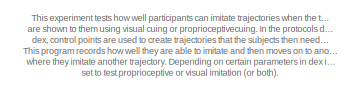
[diagram: root canvas - part 1/3, top left region]
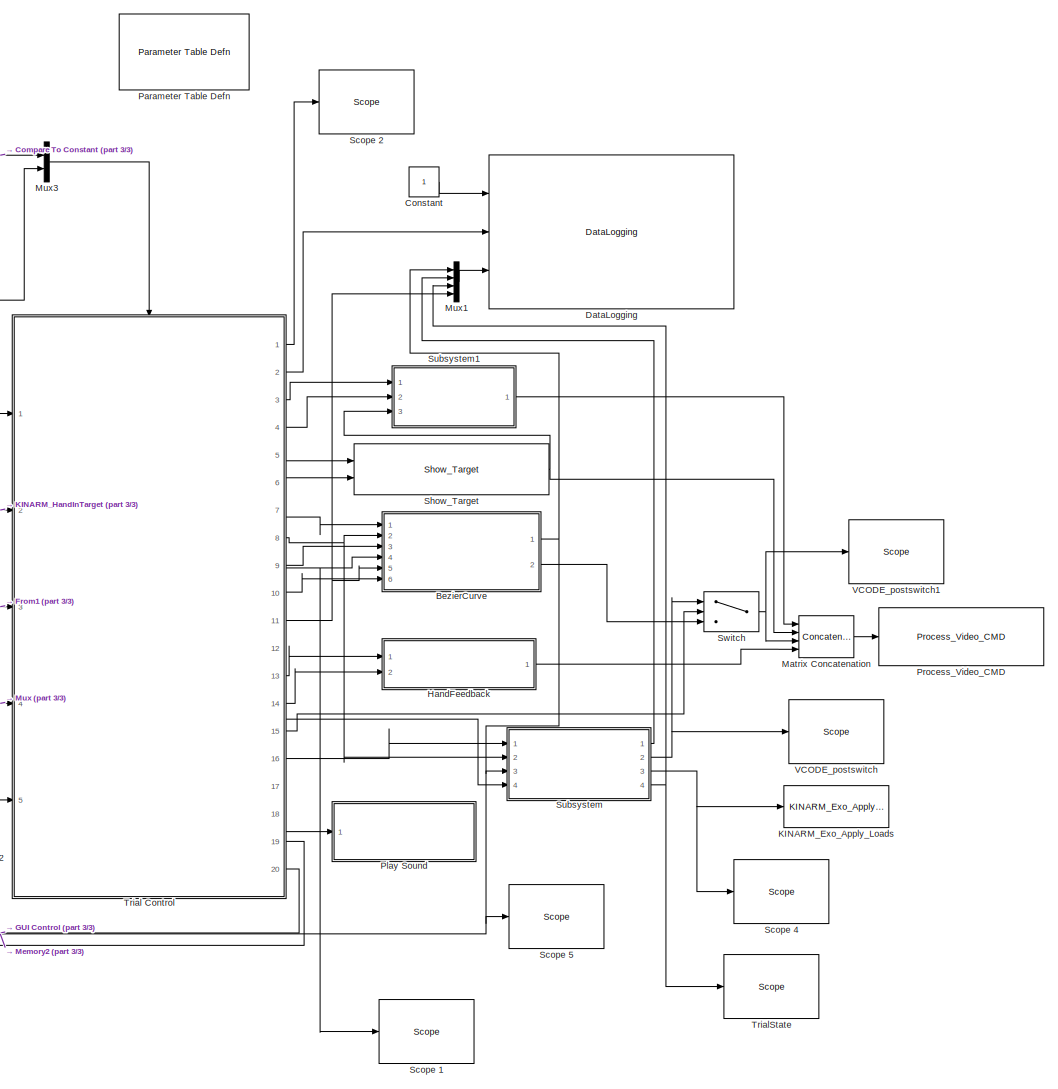
[diagram: root canvas - part 2/3, center side, full height]
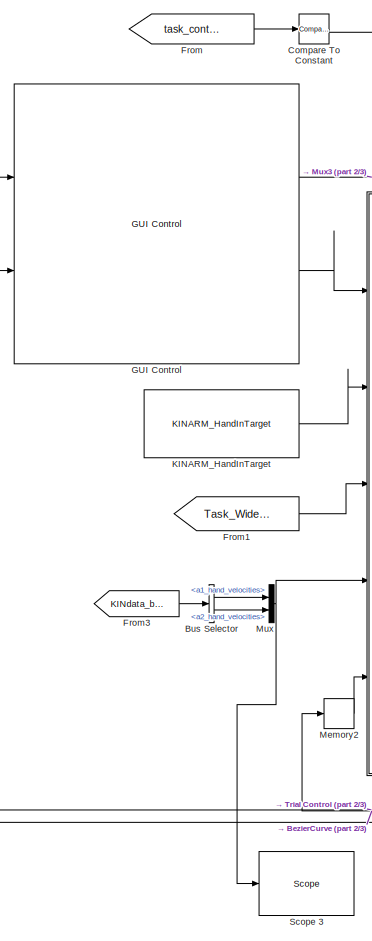
[diagram: root canvas - part 3/3, middle left region]
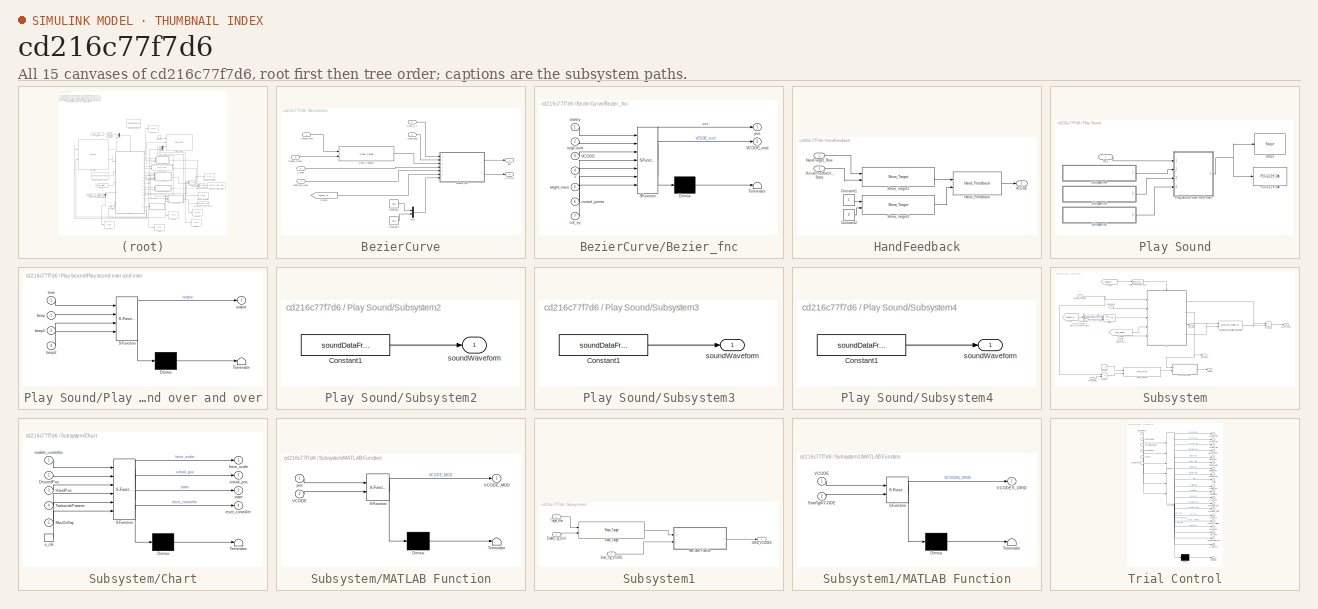
[diagram: thumbnail index - all 15 canvases of the model, root first then tree order]
MODEL slx_cd216c77f7d6
KIND model
CONFIG AbsTol = auto
CONFIG FixedStep = BKIN_STEP_TIME
CONFIG MaxStep = auto
CONFIG MinStep = auto
CONFIG RelTol = 1e-3
CONFIG SampleTimeConstraint = Unconstrained
CONFIG Solver = ode4
CONFIG SolverMode = MultiTasking
CONFIG SolverName = ode4
CONFIG StartFcn =  warndlg('Dexterit-E models cannot run under simulation. Please compile your model and run it from within Dexterit-E.');set_param(bdroot,'SimulationCommand','stop')
CONFIG StartTime = 0.0
CONFIG StopTime = inf
WORKSPACE source: MAT-file member
WORKSPACE col_x = 1
BLOCK [SubSystem] BezierCurve
  Ports = [6, 2]
  RequestExecContextInheritance = off
BLOCK [SubSystem] BezierCurve/Bezier_fnc
  ErrorFcn = Stateflow.Translate.translate
  PermitHierarchicalResolution = ExplicitOnly
  Ports = [7, 2]
  RequestExecContextInheritance = off
  SFBlockType = MATLAB Function
  TreatAsAtomicUnit = on
BLOCK [Demux] BezierCurve/Bezier_fnc/ Demux 
  Outputs = 1
  Ports = [1, 1]
BLOCK [S-Function] BezierCurve/Bezier_fnc/ SFunction 
  EnableBusSupport = on
  FunctionName = sf_sfun
  PortCounts = [7 3]
  Ports = [7, 3]
  Tag = Stateflow S-Function Imitation_Task_Multi_withSound_withGrid 3
BLOCK [Terminator] BezierCurve/Bezier_fnc/ Terminator 
BLOCK [Inport] BezierCurve/Bezier_fnc/VCODE
  IconDisplay = Port number
  Port = 3
BLOCK [Outport] BezierCurve/Bezier_fnc/VCODE_mod
  IconDisplay = Port number
  Port = 2
BLOCK [Inport] BezierCurve/Bezier_fnc/col_xy
  IconDisplay = Port number
  Port = 7
BLOCK [Inport] BezierCurve/Bezier_fnc/control_points
  IconDisplay = Port number
  Port = 6
BLOCK [Outport] BezierCurve/Bezier_fnc/pos
  IconDisplay = Port number
BLOCK [Inport] BezierCurve/Bezier_fnc/segCount
  IconDisplay = Port number
  Port = 2
BLOCK [Inport] BezierCurve/Bezier_fnc/startxy
  IconDisplay = Port number
BLOCK [Inport] BezierCurve/Bezier_fnc/t
  IconDisplay = Port number
  Port = 4
BLOCK [Inport] BezierCurve/Bezier_fnc/target_rows
  IconDisplay = Port number
  Port = 5
BLOCK [Constant] BezierCurve/Constant1
  Value = col_x
BLOCK [Constant] BezierCurve/Constant2
  Value = col_y
BLOCK [From] BezierCurve/From2
  GotoTag = Target_Table
  TagVisibility = global
BLOCK [Mux] BezierCurve/Mux
  DisplayOption = bar
  Inputs = 2
  Ports = [2, 1]
BLOCK [Inport] BezierCurve/SegCount
  IconDisplay = Port number
  Port = 6
BLOCK [Reference] BezierCurve/Show_Target3  REF=Video/Show_Target
  Ports = [2, 1]
  SourceBlock = Video/Show_Target
  SourceType = Show_Target
  attribcol1 = [COLOR_INIT 0 0 RADIUS_VIS]
  attribcol2 = [6 6 0 3]
  attribcol3 = [0 0 0 0]
  attribcol4 = [0 0 0 0]
  attribcol5 = [0 0 24 0]
  num_col = 4
  num_states = 1
  opacity = 100
  source = dialog
  stateindices_padding = [0 0 0 0 0 0 0;0 0 0 0 0 0 0;0 0 0 0 0 0 0;0 0 0 0 0 0 0;0 0 0 0 0 0 0]
  target_display = Both subject and operator displays
  target_type = Circle
BLOCK [Inport] BezierCurve/Start_XY
  IconDisplay = Port number
  Port = 5
BLOCK [Inport] BezierCurve/Target_Row
  IconDisplay = Port number
BLOCK [Inport] BezierCurve/Target_State
  IconDisplay = Port number
  Port = 2
BLOCK [Outport] BezierCurve/VCODE
  IconDisplay = Port number
  Port = 2
BLOCK [Inport] BezierCurve/controlpt_rows
  IconDisplay = Port number
  Port = 4
BLOCK [Outport] BezierCurve/pos
  IconDisplay = Port number
BLOCK [Inport] BezierCurve/t_step
  IconDisplay = Port number
  Port = 3
BLOCK [BusSelector] Bus Selector
  OutputSignals = Robot1.a1_hand_velocities,Robot2.a2_hand_velocities
  Ports = [1, 2]
BLOCK [Reference] Compare To Constant  REF=simulink/Logic and Bit
Operations/Compare
To Constant
  OutDataTypeStr = boolean
  Ports = [1, 1]
  SourceBlock = simulink/Logic and Bit\nOperations/Compare\nTo Constant
  SourceType = Compare To Constant
  ZeroCross = on
  const = 1.0
  relop = >
BLOCK [Constant] Constant
BLOCK [Reference] DataLogging  REF=General/DataLogging
  Ports = [3]
  SourceBlock = General/DataLogging
  SourceType = DataLogging
  log_analog_inputs = on
  log_event_codes = on
  show_time_remaining = off
BLOCK [From] From
  GotoTag = task_control_button
  IconDisplay = Signal name
  TagVisibility = global
BLOCK [From] From1
  GotoTag = Task_Wide_Parameters
  TagVisibility = global
BLOCK [From] From3
  CloseFcn = tagdialog Close
  GotoTag = KINdata_bus
  TagVisibility = global
BLOCK [Reference] GUI Control  REF=General/GUI Control
  Lcols = 4
  Ports = [2, 2]
  SourceBlock = General/GUI Control
  SourceType = GUI Control
  Target_Type = 1
  Vcols = 3
  XYcols = [1 2]
  indices_padding = [0 0 0 0;0 0 0 0]
  load_table_rows = 20
  show_repeat_trial_flag = on
  target_table_rows = 64
  target_type_str = Circle
  task_version = 1.0
  tp_table_rows = 100
BLOCK [SubSystem] HandFeedback
  Ports = [2, 1]
  RequestExecContextInheritance = off
BLOCK [Constant] HandFeedback/Constant1
BLOCK [Constant] HandFeedback/Constant2
  Value = 0
BLOCK [Inport] HandFeedback/HandTarget_Row
  IconDisplay = Port number
BLOCK [Reference] HandFeedback/Hand_Feedback  REF=KINARM_general/Hand_Feedback
  Ports = [2, 1]
  SourceBlock = KINARM_general/Hand_Feedback
  SourceType = Hand Feedback
  feedback_cntl_src = style and status
BLOCK [Reference] HandFeedback/Show_Target1  REF=Video/Show_Target
  Ports = [2, 1]
  SourceBlock = Video/Show_Target
  SourceType = Show_Target
  attribcol1 = [COLOR_INIT 0 0 RADIUS_VIS]
  attribcol2 = [COLOR_MOVE 0 0 RADIUS_VIS]
  attribcol3 = [0 0 0 0]
  attribcol4 = [0 0 0 0]
  attribcol5 = [0 0 24 0]
  num_col = 4
  num_states = 2
  opacity = 100
  source = dialog
  stateindices_padding = [0 0 0 0 0 0 0;0 0 0 0 0 0 0;0 0 0 0 0 0 0;0 0 0 0 0 0 0;0 0 0 0 0 0 0]
  target_display = Both subject and operator displays
  target_type = Circle
BLOCK [Reference] HandFeedback/Show_Target2  REF=Video/Show_Target
  Ports = [2, 1]
  SourceBlock = Video/Show_Target
  SourceType = Show_Target
  attribcol1 = [COLOR_INIT 0 0 RADIUS_VIS]
  attribcol2 = [COLOR_MOVE 0 0 RADIUS_VIS]
  attribcol3 = [0 0 0 0]
  attribcol4 = [0 0 0 0]
  attribcol5 = [0 0 24 0]
  num_col = 4
  num_states = 2
  opacity = 100
  source = dialog
  stateindices_padding = [0 0 0 0 0 0 0;0 0 0 0 0 0 0;0 0 0 0 0 0 0;0 0 0 0 0 0 0;0 0 0 0 0 0 0]
  target_display = Both subject and operator displays
  target_type = Circle
BLOCK [Outport] HandFeedback/VCODE
  IconDisplay = Port number
BLOCK [Inport] HandFeedback/VisualFeedback_State
  IconDisplay = Port number
  Port = 2
BLOCK [Reference] KINARM_Exo_Apply_Loads  REF=KINARM_loads/KINARM_Exo_Apply_Loads
  Ports = [1]
  SourceBlock = KINARM_loads/KINARM_Exo_Apply_Loads
  SourceType = KINARM_Apply_Loads
  down_duration = 200
  limit_motors = off
  max_torque = 9
  up_duration = 200
BLOCK [Reference] KINARM_HandInTarget  REF=KINARM_general/KINARM_HandInTarget
  Ports = [0, 1]
  SourceBlock = KINARM_general/KINARM_HandInTarget
  SourceType = KINARM_HandInTarget
  attribcol1 = [RADIUS_VIS]
  attribcol2 = [4]
  attribcol3 = [5]
  attribcol4 = [6]
  attribcol5 = [0]
  num_states = 1
  target_type = Circle
  use_dominant_hand = on
BLOCK [Concatenate] Matrix Concatenation
  Mode = Multidimensional array
  NumInputs = 4
  Ports = [4, 1]
BLOCK [Memory] Memory2
  InheritSampleTime = on
BLOCK [Mux] Mux
  DisplayOption = bar
  Inputs = [2 2]
  Ports = [2, 1]
BLOCK [Mux] Mux1
  DisplayOption = bar
  Ports = [4, 1]
BLOCK [Mux] Mux3
  DisplayOption = bar
  Inputs = 2
  Ports = [2, 1]
BLOCK [Reference] Parameter Table Defn  REF=General/Parameter Table Defn
  Ports = []
  ShowInLibBrowser = 0
  SourceBlock = General/Parameter Table Defn
  UserDataPersistent = on
BLOCK [SubSystem] Play Sound
  Ports = [1]
  RequestExecContextInheritance = off
BLOCK [Inport] Play Sound/In1
  IconDisplay = Signal name
BLOCK [Reference] Play Sound/PCI-6229 DA  REF=xpcnilib/D//A/M Series/PCI-6229 DA
  Ports = [1]
  SourceBlock = xpcnilib/D//A/M Series/PCI-6229 DA
  SourceType = danipci6229
  channel = [1]
  initValue = [0]
  reset = [1]
  sampletime = -1
  slot = -1
BLOCK [SubSystem] Play Sound/Play sound over and over
  ErrorFcn = Stateflow.Translate.translate
  PermitHierarchicalResolution = ExplicitOnly
  Ports = [4, 1]
  RequestExecContextInheritance = off
  SFBlockType = MATLAB Function
  TreatAsAtomicUnit = on
BLOCK [Demux] Play Sound/Play sound over and over/ Demux 
  Outputs = 1
  Ports = [1, 1]
BLOCK [S-Function] Play Sound/Play sound over and over/ SFunction 
  EnableBusSupport = on
  FunctionName = sf_sfun
  PortCounts = [4 2]
  Ports = [4, 2]
  Tag = Stateflow S-Function Imitation_Task_Multi_withSound_withGrid 6
BLOCK [Terminator] Play Sound/Play sound over and over/ Terminator 
BLOCK [Inport] Play Sound/Play sound over and over/beep
  IconDisplay = Port number
  Port = 2
BLOCK [Inport] Play Sound/Play sound over and over/beep1
  IconDisplay = Port number
  Port = 3
BLOCK [Inport] Play Sound/Play sound over and over/beep2
  IconDisplay = Port number
  Port = 4
BLOCK [Outport] Play Sound/Play sound over and over/output
  IconDisplay = Port number
BLOCK [Inport] Play Sound/Play sound over and over/tone
  IconDisplay = Port number
BLOCK [Reference] Play Sound/Scope   REF=slrtlib/Displays and
Logging/Scope 
  Ports = [1]
  SourceBlock = slrtlib/Displays and\nLogging/Scope
  SourceType = xpcscopeblock
  autorestart = off
  autostart = on
  dynamicfilemode = off
  filename = data.dat
  formatstr = '%15.6f'
  grid = on
  interleave = 1
  maxwritefilesize = 512*1024^2
  mode = Lazy
  noprepostsamples = 0
  nosamples = 4000
  scopeno = 9
  scopetype = Target
  triggerlevel = 0.0
  triggermode = FreeRun
  triggersample = 0
  triggerscope = 1
  triggersignal = 1
  triggerslope = Either
  trigsignalfromport = off
  viewmode = Graphical redraw
  writesize = 512
  ylimits = [0,0]
BLOCK [SubSystem] Play Sound/Subsystem2
  Ports = [0, 1]
  RequestExecContextInheritance = off
BLOCK [Constant] Play Sound/Subsystem2/Constant1
  Value = soundDataFromFile
BLOCK [Outport] Play Sound/Subsystem2/soundWaveform
  IconDisplay = Port number
BLOCK [SubSystem] Play Sound/Subsystem3
  Ports = [0, 1]
  RequestExecContextInheritance = off
BLOCK [Constant] Play Sound/Subsystem3/Constant1
  Value = soundDataFromFile
BLOCK [Outport] Play Sound/Subsystem3/soundWaveform
  IconDisplay = Port number
BLOCK [SubSystem] Play Sound/Subsystem4
  Ports = [0, 1]
  RequestExecContextInheritance = off
BLOCK [Constant] Play Sound/Subsystem4/Constant1
  Value = soundDataFromFile
BLOCK [Outport] Play Sound/Subsystem4/soundWaveform
  IconDisplay = Port number
BLOCK [Reference] Process_Video_CMD  REF=Video/Process_Video_CMD
  Ports = [1]
  SourceBlock = Video/Process_Video_CMD
  SourceType = Process_Video_CMD
  video_delay = 50
BLOCK [Reference] Scope 1  REF=slrtlib/Displays and
Logging/Scope 
  Ports = [1]
  SourceBlock = slrtlib/Displays and\nLogging/Scope
  SourceType = xpcscopeblock
  autorestart = off
  autostart = on
  dynamicfilemode = off
  filename = data.dat
  formatstr = '%15.6f'
  grid = on
  interleave = 1
  maxwritefilesize = 512*1024^2
  mode = Lazy
  noprepostsamples = 0
  nosamples = 250
  scopeno = 2
  scopetype = Target
  triggerlevel = 0.0
  triggermode = FreeRun
  triggersample = 0
  triggerscope = 1
  triggersignal = 1
  triggerslope = Either
  trigsignalfromport = off
  viewmode = Numerical
  writesize = 512
  ylimits = [0,0]
BLOCK [Reference] Scope 2  REF=slrtlib/Displays and
Logging/Scope 
  Ports = [1]
  SourceBlock = slrtlib/Displays and\nLogging/Scope
  SourceType = xpcscopeblock
  autorestart = off
  autostart = on
  dynamicfilemode = off
  filename = data.dat
  formatstr = '%15.6f'
  grid = on
  interleave = 1
  maxwritefilesize = 512*1024^2
  mode = Lazy
  noprepostsamples = 0
  nosamples = 250
  scopeno = 3
  scopetype = Target
  triggerlevel = 0.0
  triggermode = FreeRun
  triggersample = 0
  triggerscope = 1
  triggersignal = 1
  triggerslope = Either
  trigsignalfromport = off
  viewmode = Numerical
  writesize = 512
  ylimits = [0,0]
BLOCK [Reference] Scope 3  REF=slrtlib/Displays and
Logging/Scope 
  Ports = [1]
  SourceBlock = slrtlib/Displays and\nLogging/Scope
  SourceType = xpcscopeblock
  autorestart = off
  autostart = on
  dynamicfilemode = off
  filename = data.dat
  formatstr = '%15.6f'
  grid = on
  interleave = 1
  maxwritefilesize = 512*1024^2
  mode = Lazy
  noprepostsamples = 0
  nosamples = 250
  scopeno = 4
  scopetype = Target
  triggerlevel = 0.0
  triggermode = FreeRun
  triggersample = 0
  triggerscope = 1
  triggersignal = 1
  triggerslope = Either
  trigsignalfromport = off
  viewmode = Numerical
  writesize = 512
  ylimits = [0,0]
BLOCK [Reference] Scope 4  REF=slrtlib/Displays and
Logging/Scope 
  Ports = [1]
  SourceBlock = slrtlib/Displays and\nLogging/Scope
  SourceType = xpcscopeblock
  autorestart = off
  autostart = on
  dynamicfilemode = off
  filename = data.dat
  formatstr = '%15.6f'
  grid = on
  interleave = 1
  maxwritefilesize = 512*1024^2
  mode = Lazy
  noprepostsamples = 0
  nosamples = 250
  scopeno = 5
  scopetype = Target
  triggerlevel = 0.0
  triggermode = FreeRun
  triggersample = 0
  triggerscope = 1
  triggersignal = 1
  triggerslope = Either
  trigsignalfromport = off
  viewmode = Numerical
  writesize = 512
  ylimits = [0,0]
BLOCK [Reference] Scope 5  REF=slrtlib/Displays and
Logging/Scope 
  Ports = [1]
  SourceBlock = slrtlib/Displays and\nLogging/Scope
  SourceType = xpcscopeblock
  autorestart = off
  autostart = on
  dynamicfilemode = off
  filename = data.dat
  formatstr = '%15.6f'
  grid = on
  interleave = 1
  maxwritefilesize = 512*1024^2
  mode = Lazy
  noprepostsamples = 0
  nosamples = 250
  scopeno = 7
  scopetype = Target
  triggerlevel = 0.0
  triggermode = FreeRun
  triggersample = 0
  triggerscope = 1
  triggersignal = 1
  triggerslope = Either
  trigsignalfromport = off
  viewmode = Numerical
  writesize = 512
  ylimits = [0,0]
BLOCK [Reference] Show_Target  REF=Video/Show_Target
  Ports = [2, 1]
  SourceBlock = Video/Show_Target
  SourceType = Show_Target
  attribcol1 = [0 COLOR_INIT STROKE_WIDTH RADIUS_VIS RADIUS_VIS 0]
  attribcol2 = [6 6 0 3 0 0]
  attribcol3 = [0 0 0 0 0 0]
  attribcol4 = [0 0 0 0 0 0]
  attribcol5 = [0 0 24 0 0 0]
  num_col = 6
  num_states = 1
  opacity = 100
  source = dialog
  stateindices_padding = [0 0 0 0 0;0 0 0 0 0;0 0 0 0 0;0 0 0 0 0;0 0 0 0 0]
  target_display = Both subject and operator displays
  target_type = Rectangle
BLOCK [SubSystem] Subsystem
  Ports = [4, 4]
  RequestExecContextInheritance = off
BLOCK [BusSelector] Subsystem/Bus Selector
  OutputSignals = Robot2.a2_hand_position,KINDataGeneral.active_arm,Robot1.a1_hand_position
  Ports = [1, 3]
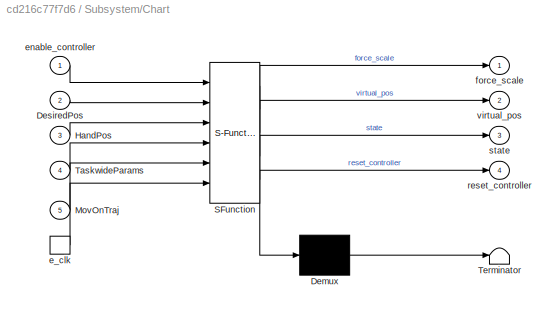
BLOCK [SubSystem] Subsystem/Chart
  ErrorFcn = Stateflow.Translate.translate
  PermitHierarchicalResolution = ExplicitOnly
  Ports = [5, 4, 0, 1]
  RequestExecContextInheritance = off
  SFBlockType = Chart
  TreatAsAtomicUnit = on
BLOCK [Demux] Subsystem/Chart/ Demux 
  Outputs = 1
  Ports = [1, 1]
BLOCK [S-Function] Subsystem/Chart/ SFunction 
  EnableBusSupport = on
  FunctionName = sf_sfun
  PortCounts = [6 5]
  Ports = [6, 5]
  Tag = Stateflow S-Function Imitation_Task_Multi_withSound_withGrid 1
BLOCK [Terminator] Subsystem/Chart/ Terminator 
BLOCK [Inport] Subsystem/Chart/DesiredPos
  IconDisplay = Port number
  Port = 2
BLOCK [Inport] Subsystem/Chart/HandPos
  IconDisplay = Port number
  Port = 3
BLOCK [Inport] Subsystem/Chart/MovOnTraj
  IconDisplay = Port number
  Port = 5
BLOCK [Inport] Subsystem/Chart/TaskwideParams
  IconDisplay = Port number
  Port = 4
BLOCK [TriggerPort] Subsystem/Chart/e_clk
  Ports = [0, 1]
  ShowOutputPort = on
  StatesWhenEnabling = held
  TriggerType = either
BLOCK [Inport] Subsystem/Chart/enable_controller
  IconDisplay = Port number
BLOCK [Outport] Subsystem/Chart/force_scale
  IconDisplay = Port number
BLOCK [Outport] Subsystem/Chart/reset_controller
  IconDisplay = Port number
  Port = 4
BLOCK [Outport] Subsystem/Chart/state
  IconDisplay = Port number
  Port = 3
BLOCK [Outport] Subsystem/Chart/virtual_pos
  IconDisplay = Port number
  Port = 2
BLOCK [Constant] Subsystem/Constant
  Value = 2
BLOCK [DataTypeConversion] Subsystem/Data Type Conversion2
  RndMeth = Floor
  SaturateOnIntegerOverflow = off
BLOCK [Outport] Subsystem/EXO Torques
  IconDisplay = Port number
  Port = 3
BLOCK [From] Subsystem/From
  GotoTag = KINdata_bus
  TagVisibility = global
BLOCK [From] Subsystem/From1
  GotoTag = Task_Wide_Parameters
  TagVisibility = global
BLOCK [From] Subsystem/From4
  CloseFcn = tagdialog Close
  GotoTag = global_clock
  TagVisibility = global
BLOCK [Reference] Subsystem/KINARM_Exo_Position_Controller  REF=KINARM_loads/KINARM_Exo_Position_Controller
  KINARM_Type = Human
  Ports = [2, 1]
  SourceBlock = KINARM_loads/KINARM_Exo_Position_Controller
  angles_or_XY = End-point (global x/y)
  inertias_for_FF = KINARM robot & arm troughs & subject
  sample_time = 0.001
  use_dom_hand = on
BLOCK [SubSystem] Subsystem/MATLAB Function
  ErrorFcn = Stateflow.Translate.translate
  PermitHierarchicalResolution = ExplicitOnly
  Ports = [2, 1]
  RequestExecContextInheritance = off
  SFBlockType = MATLAB Function
  TreatAsAtomicUnit = on
BLOCK [Demux] Subsystem/MATLAB Function/ Demux 
  Outputs = 1
  Ports = [1, 1]
BLOCK [S-Function] Subsystem/MATLAB Function/ SFunction 
  EnableBusSupport = on
  FunctionName = sf_sfun
  PortCounts = [2 2]
  Ports = [2, 2]
  Tag = Stateflow S-Function Imitation_Task_Multi_withSound_withGrid 4
BLOCK [Terminator] Subsystem/MATLAB Function/ Terminator 
BLOCK [Inport] Subsystem/MATLAB Function/VCODE
  IconDisplay = Port number
  Port = 2
BLOCK [Outport] Subsystem/MATLAB Function/VCODE_MOD
  IconDisplay = Port number
BLOCK [Inport] Subsystem/MATLAB Function/pos
  IconDisplay = Port number
BLOCK [Inport] Subsystem/MovOnTraj
  IconDisplay = Port number
  Port = 4
BLOCK [Product] Subsystem/Product
  InputSameDT = off
  OutDataTypeStr = Inherit: Inherit via internal rule
  Ports = [2, 1]
  RndMeth = Floor
  SaturateOnIntegerOverflow = off
BLOCK [Product] Subsystem/Product2
  InputSameDT = off
  OutDataTypeStr = Inherit: Inherit via internal rule
  Ports = [2, 1]
  RndMeth = Floor
  SaturateOnIntegerOverflow = off
BLOCK [Reference] Subsystem/Show_Target  REF=Video/Show_Target
  Ports = [2, 1]
  SourceBlock = Video/Show_Target
  SourceType = Show_Target
  attribcol1 = [COLOR_INIT 0 0 RADIUS_VIS]
  attribcol2 = [6 6 0 3]
  attribcol3 = [0 0 0 0]
  attribcol4 = [0 0 0 0]
  attribcol5 = [0 0 24 0]
  num_col = 4
  num_states = 1
  opacity = 100
  source = dialog
  stateindices_padding = [0 0 0 0 0 0 0;0 0 0 0 0 0 0;0 0 0 0 0 0 0;0 0 0 0 0 0 0;0 0 0 0 0 0 0]
  target_display = Both subject and operator displays
  target_type = Circle
BLOCK [Switch] Subsystem/Switch
  Criteria = u2 > Threshold
  InputSameDT = off
  SaturateOnIntegerOverflow = off
  Threshold = 1.5
BLOCK [Outport] Subsystem/VCODE
  IconDisplay = Port number
  Port = 2
BLOCK [Inport] Subsystem/desiredpos
  IconDisplay = Port number
  Port = 3
BLOCK [Inport] Subsystem/enable_controller
  IconDisplay = Port number
BLOCK [Inport] Subsystem/target_state
  IconDisplay = Port number
  Port = 2
BLOCK [Outport] Subsystem/trial_state
  IconDisplay = Port number
  Port = 4
BLOCK [Outport] Subsystem/virtual_pos
  IconDisplay = Port number
BLOCK [SubSystem] Subsystem1
  Ports = [3, 1]
  RequestExecContextInheritance = off
BLOCK [Inport] Subsystem1/Enable_Tgt_Grid
  IconDisplay = Port number
BLOCK [Outport] Subsystem1/GRID_VCODES
  IconDisplay = Port number
BLOCK [SubSystem] Subsystem1/MATLAB Function
  ErrorFcn = Stateflow.Translate.translate
  PermitHierarchicalResolution = ExplicitOnly
  Ports = [2, 1]
  RequestExecContextInheritance = off
  SFBlockType = MATLAB Function
  TreatAsAtomicUnit = on
BLOCK [Demux] Subsystem1/MATLAB Function/ Demux 
  Outputs = 1
  Ports = [1, 1]
BLOCK [S-Function] Subsystem1/MATLAB Function/ SFunction 
  EnableBusSupport = on
  FunctionName = sf_sfun
  PortCounts = [2 2]
  Ports = [2, 2]
  Tag = Stateflow S-Function Imitation_Task_Multi_withSound_withGrid 5
BLOCK [Terminator] Subsystem1/MATLAB Function/ Terminator 
BLOCK [Inport] Subsystem1/MATLAB Function/StartTgtVCODE
  IconDisplay = Port number
  Port = 2
BLOCK [Inport] Subsystem1/MATLAB Function/VCODE
  IconDisplay = Port number
BLOCK [Outport] Subsystem1/MATLAB Function/VCODES_GRID
  IconDisplay = Port number
BLOCK [Reference] Subsystem1/Show_Target  REF=Video/Show_Target
  Ports = [2, 1]
  SourceBlock = Video/Show_Target
  SourceType = Show_Target
  attribcol1 = [COLOR_INIT 0 0 RADIUS_VIS]
  attribcol2 = [6 6 0 3]
  attribcol3 = [0 0 0 0]
  attribcol4 = [0 0 0 0]
  attribcol5 = [0 0 24 0]
  num_col = 4
  num_states = 1
  opacity = 100
  source = dialog
  stateindices_padding = [0 0 0 0 0 0 0;0 0 0 0 0 0 0;0 0 0 0 0 0 0;0 0 0 0 0 0 0;0 0 0 0 0 0 0]
  target_display = Both subject and operator displays
  target_type = Circle
BLOCK [Inport] Subsystem1/Start_Tgt_VCODE
  IconDisplay = Port number
  Port = 3
BLOCK [Inport] Subsystem1/Target_Row
  IconDisplay = Port number
  Port = 2
BLOCK [Switch] Switch
  Criteria = u2 > Threshold
  InputSameDT = off
  SaturateOnIntegerOverflow = off
  Threshold = 0.5
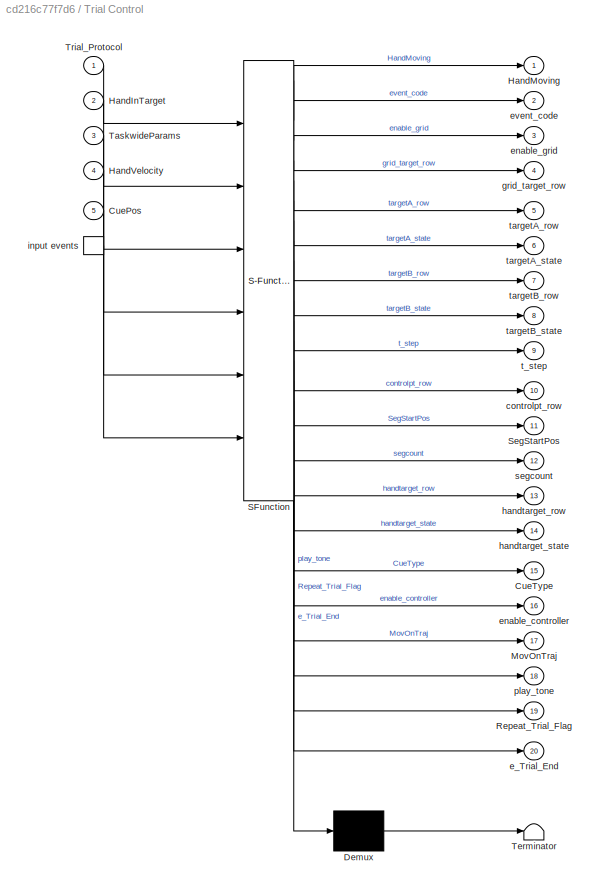
BLOCK [SubSystem] Trial Control
  ErrorFcn = Stateflow.Translate.translate
  PermitHierarchicalResolution = ExplicitOnly
  Ports = [5, 20, 0, 1]
  RequestExecContextInheritance = off
  SFBlockType = Chart
  TreatAsAtomicUnit = on
BLOCK [Demux] Trial Control/ Demux 
  Outputs = 1
  Ports = [1, 1]
BLOCK [S-Function] Trial Control/ SFunction 
  EnableBusSupport = on
  FunctionName = sf_sfun
  PortCounts = [6 21]
  Ports = [6, 21]
  Tag = Stateflow S-Function Imitation_Task_Multi_withSound_withGrid 2
BLOCK [Terminator] Trial Control/ Terminator 
BLOCK [TriggerPort] Trial Control/ input events 
  Ports = [0, 1]
  ShowOutputPort = on
  TriggerType = either
BLOCK [Inport] Trial Control/CuePos
  IconDisplay = Port number
  Port = 5
BLOCK [Outport] Trial Control/CueType
  IconDisplay = Port number
  Port = 15
BLOCK [Inport] Trial Control/HandInTarget
  IconDisplay = Port number
  Port = 2
BLOCK [Outport] Trial Control/HandMoving
  IconDisplay = Port number
BLOCK [Inport] Trial Control/HandVelocity
  IconDisplay = Port number
  Port = 4
BLOCK [Outport] Trial Control/MovOnTraj
  IconDisplay = Port number
  Port = 17
BLOCK [Outport] Trial Control/Repeat_Trial_Flag
  IconDisplay = Port number
  Port = 19
BLOCK [Outport] Trial Control/SegStartPos
  IconDisplay = Port number
  Port = 11
BLOCK [Inport] Trial Control/TaskwideParams
  IconDisplay = Port number
  Port = 3
BLOCK [Inport] Trial Control/Trial_Protocol
  IconDisplay = Port number
BLOCK [Outport] Trial Control/controlpt_row
  IconDisplay = Port number
  Port = 10
BLOCK [Outport] Trial Control/e_Trial_End
  IconDisplay = Port number
  Port = 20
BLOCK [Outport] Trial Control/enable_controller
  IconDisplay = Port number
  Port = 16
BLOCK [Outport] Trial Control/enable_grid
  IconDisplay = Port number
  Port = 3
BLOCK [Outport] Trial Control/event_code
  IconDisplay = Port number
  Port = 2
BLOCK [Outport] Trial Control/grid_target_row
  IconDisplay = Port number
  Port = 4
BLOCK [Outport] Trial Control/handtarget_row
  IconDisplay = Port number
  Port = 13
BLOCK [Outport] Trial Control/handtarget_state
  IconDisplay = Port number
  Port = 14
BLOCK [Outport] Trial Control/play_tone
  IconDisplay = Port number
  Port = 18
BLOCK [Outport] Trial Control/segcount
  IconDisplay = Port number
  Port = 12
BLOCK [Outport] Trial Control/t_step
  IconDisplay = Port number
  Port = 9
BLOCK [Outport] Trial Control/targetA_row
  IconDisplay = Port number
  Port = 5
BLOCK [Outport] Trial Control/targetA_state
  IconDisplay = Port number
  Port = 6
BLOCK [Outport] Trial Control/targetB_row
  IconDisplay = Port number
  Port = 7
BLOCK [Outport] Trial Control/targetB_state
  IconDisplay = Port number
  Port = 8
BLOCK [Reference] TrialState  REF=slrtlib/Displays and
Logging/Scope 
  Ports = [1]
  SourceBlock = slrtlib/Displays and\nLogging/Scope
  SourceType = xpcscopeblock
  autorestart = off
  autostart = on
  dynamicfilemode = off
  filename = data.dat
  formatstr = '%15.6f'
  grid = on
  interleave = 1
  maxwritefilesize = 512*1024^2
  mode = Lazy
  noprepostsamples = 0
  nosamples = 250
  scopeno = 1
  scopetype = Target
  triggerlevel = 0.0
  triggermode = FreeRun
  triggersample = 0
  triggerscope = 1
  triggersignal = 1
  triggerslope = Either
  trigsignalfromport = off
  viewmode = Numerical
  writesize = 512
  ylimits = [0,0]
BLOCK [Reference] VCODE_postswitch  REF=slrtlib/Displays and
Logging/Scope 
  Ports = [1]
  SourceBlock = slrtlib/Displays and\nLogging/Scope
  SourceType = xpcscopeblock
  autorestart = off
  autostart = on
  dynamicfilemode = off
  filename = data.dat
  formatstr = '%15.6f'
  grid = on
  interleave = 1
  maxwritefilesize = 512*1024^2
  mode = Lazy
  noprepostsamples = 0
  nosamples = 250
  scopeno = 6
  scopetype = Target
  triggerlevel = 0.0
  triggermode = FreeRun
  triggersample = 0
  triggerscope = 1
  triggersignal = 1
  triggerslope = Either
  trigsignalfromport = off
  viewmode = Numerical
  writesize = 512
  ylimits = [0,0]
BLOCK [Reference] VCODE_postswitch1  REF=slrtlib/Displays and
Logging/Scope 
  Ports = [1]
  SourceBlock = slrtlib/Displays and\nLogging/Scope
  SourceType = xpcscopeblock
  autorestart = off
  autostart = on
  dynamicfilemode = off
  filename = data.dat
  formatstr = '%15.6f'
  grid = on
  interleave = 1
  maxwritefilesize = 512*1024^2
  mode = Lazy
  noprepostsamples = 0
  nosamples = 250
  scopeno = 8
  scopetype = Target
  triggerlevel = 0.0
  triggermode = FreeRun
  triggersample = 0
  triggerscope = 1
  triggersignal = 1
  triggerslope = Either
  trigsignalfromport = off
  viewmode = Numerical
  writesize = 512
  ylimits = [0,0]
ANNOTATION (root): This experiment tests how well participants can imitate trajectories when the trajectories are shown to them using visual cuing or proprioceptivecuing. In the protocols defined in dex, control points are used to create trajectories that the subjects then need to imitate. This program records how well they are able to imitate and then moves on to another trial where they imitate another trajectory....<+107ch>
ANNOTATION Subsystem: 1 is right arm, 2 is left arm Switch passes the top input if true
LINE BezierCurve/Bezier_fnc:1 -> BezierCurve/pos:1
LINE BezierCurve/Bezier_fnc:2 -> BezierCurve/VCODE:1
LINE BezierCurve/Constant1:1 -> BezierCurve/Mux:1
LINE BezierCurve/Constant2:1 -> BezierCurve/Mux:2
LINE BezierCurve/From2:1 -> BezierCurve/Bezier_fnc:6
LINE BezierCurve/Mux:1 -> BezierCurve/Bezier_fnc:7
LINE BezierCurve/SegCount:1 -> BezierCurve/Bezier_fnc:2
LINE BezierCurve/Show_Target3:1 -> BezierCurve/Bezier_fnc:3
LINE BezierCurve/Start_XY:1 -> BezierCurve/Bezier_fnc:1
LINE BezierCurve/Target_Row:1 -> BezierCurve/Show_Target3:1
LINE BezierCurve/Target_State:1 -> BezierCurve/Show_Target3:2
LINE BezierCurve/controlpt_rows:1 -> BezierCurve/Bezier_fnc:5
LINE BezierCurve/t_step:1 -> BezierCurve/Bezier_fnc:4
NET BezierCurve:1 -> Memory2:1, Mux1:1, Scope 5:1, Subsystem:3
LINE BezierCurve:2 -> Switch:3
LINE Bus Selector:1 -> Mux:1
LINE Bus Selector:2 -> Mux:2
LINE Compare To Constant:1 -> Mux3:1
LINE Constant:1 -> DataLogging:1
LINE From1:1 -> Trial Control:3
LINE From3:1 -> Bus Selector:1
LINE From:1 -> Compare To Constant:1
LINE GUI Control:1 -> Mux3:2
LINE GUI Control:2 -> Trial Control:1
LINE HandFeedback/Constant1:1 -> HandFeedback/Show_Target2:1
LINE HandFeedback/Constant2:1 -> HandFeedback/Show_Target2:2
LINE HandFeedback/HandTarget_Row:1 -> HandFeedback/Show_Target1:1
LINE HandFeedback/Hand_Feedback:1 -> HandFeedback/VCODE:1
LINE HandFeedback/Show_Target1:1 -> HandFeedback/Hand_Feedback:1
LINE HandFeedback/Show_Target2:1 -> HandFeedback/Hand_Feedback:2
LINE HandFeedback/VisualFeedback_State:1 -> HandFeedback/Show_Target1:2
LINE HandFeedback:1 -> Matrix Concatenation:4
LINE KINARM_HandInTarget:1 -> Trial Control:2
LINE Matrix Concatenation:1 -> Process_Video_CMD:1
LINE Memory2:1 -> Trial Control:5
LINE Mux1:1 -> DataLogging:3
LINE Mux3:1 -> Trial Control:trigger
NET Mux:1 -> Scope 3:1, Trial Control:4
LINE Play Sound/In1:1 -> Play Sound/Play sound over and over:1
NET Play Sound/Play sound over and over:1 -> Play Sound/PCI-6229 DA:1, Play Sound/Scope :1
LINE Play Sound/Subsystem2/Constant1:1 -> Play Sound/Subsystem2/soundWaveform:1
LINE Play Sound/Subsystem2:1 -> Play Sound/Play sound over and over:4
LINE Play Sound/Subsystem3/Constant1:1 -> Play Sound/Subsystem3/soundWaveform:1
LINE Play Sound/Subsystem3:1 -> Play Sound/Play sound over and over:3
LINE Play Sound/Subsystem4/Constant1:1 -> Play Sound/Subsystem4/soundWaveform:1
LINE Play Sound/Subsystem4:1 -> Play Sound/Play sound over and over:2
NET Show_Target:1 -> Matrix Concatenation:2, Subsystem1:3
LINE Subsystem/Bus Selector:1 -> Subsystem/Switch:1
LINE Subsystem/Bus Selector:2 -> Subsystem/Switch:2
LINE Subsystem/Bus Selector:3 -> Subsystem/Switch:3
LINE Subsystem/Chart:1 -> Subsystem/Product2:1
NET Subsystem/Chart:2 -> Subsystem/KINARM_Exo_Position_Controller:1, Subsystem/MATLAB Function:1, Subsystem/virtual_pos:1
LINE Subsystem/Chart:3 -> Subsystem/trial_state:1
LINE Subsystem/Chart:4 -> Subsystem/KINARM_Exo_Position_Controller:2
LINE Subsystem/Constant:1 -> Subsystem/Show_Target:1
LINE Subsystem/Data Type Conversion2:1 -> Subsystem/Chart:trigger
LINE Subsystem/From1:1 -> Subsystem/Chart:4
LINE Subsystem/From4:1 -> Subsystem/Data Type Conversion2:1
LINE Subsystem/From:1 -> Subsystem/Bus Selector:1
LINE Subsystem/KINARM_Exo_Position_Controller:1 -> Subsystem/Product2:2
LINE Subsystem/MATLAB Function:1 -> Subsystem/VCODE:1
LINE Subsystem/MovOnTraj:1 -> Subsystem/Chart:5
LINE Subsystem/Product2:1 -> Subsystem/EXO Torques:1
LINE Subsystem/Product:1 -> Subsystem/Show_Target:2
LINE Subsystem/Show_Target:1 -> Subsystem/MATLAB Function:2
LINE Subsystem/Switch:1 -> Subsystem/Chart:3
LINE Subsystem/desiredpos:1 -> Subsystem/Chart:2
NET Subsystem/enable_controller:1 -> Subsystem/Chart:1, Subsystem/Product:1
LINE Subsystem/target_state:1 -> Subsystem/Product:2
LINE Subsystem1/Enable_Tgt_Grid:1 -> Subsystem1/Show_Target:2
LINE Subsystem1/MATLAB Function:1 -> Subsystem1/GRID_VCODES:1
LINE Subsystem1/Show_Target:1 -> Subsystem1/MATLAB Function:1
LINE Subsystem1/Start_Tgt_VCODE:1 -> Subsystem1/MATLAB Function:2
LINE Subsystem1/Target_Row:1 -> Subsystem1/Show_Target:1
LINE Subsystem1:1 -> Matrix Concatenation:1
LINE Subsystem:1 -> Mux1:2
NET Subsystem:2 -> Switch:1, VCODE_postswitch:1
NET Subsystem:3 -> KINARM_Exo_Apply_Loads:1, Scope 4:1
NET Subsystem:4 -> Mux1:3, TrialState:1
NET Switch:1 -> Matrix Concatenation:3, VCODE_postswitch1:1
LINE Trial Control:1 -> Scope 2:1
NET Trial Control:10 -> BezierCurve:4, Scope 1:1
NET Trial Control:11 -> BezierCurve:5, Mux1:4
LINE Trial Control:12 -> BezierCurve:6
LINE Trial Control:13 -> HandFeedback:1
LINE Trial Control:14 -> HandFeedback:2
LINE Trial Control:15 -> Switch:2
LINE Trial Control:16 -> Subsystem:1
LINE Trial Control:17 -> Subsystem:4
LINE Trial Control:18 -> Play Sound:1
LINE Trial Control:19 -> GUI Control:1
LINE Trial Control:2 -> DataLogging:2
LINE Trial Control:20 -> GUI Control:2
LINE Trial Control:3 -> Subsystem1:1
LINE Trial Control:4 -> Subsystem1:2
LINE Trial Control:5 -> Show_Target:1
LINE Trial Control:6 -> Show_Target:2
LINE Trial Control:7 -> BezierCurve:1
NET Trial Control:8 -> BezierCurve:2, Subsystem:2
LINE Trial Control:9 -> BezierCurve:3
note: NET lines group one-source signal fan-out (src -> all destinations, sorted); 1:1 wires keep LINE
CHART Subsystem/Chart states=12 transitions=18
  STATE_LABEL 'EnableState/'
  STATE_LABEL 'AutoMoveToPos/\n//smoothly creates a trajectory to get the hand to a point eventually'
  STATE_LABEL 'MovingToDesiredXY/\ntickCount = TaskwideParams[K_TIME_TO_START];\nstate = 11;\ntick = 0;\n\nduring:\non e_clk: tick++;\n// the trajectory velocity will have a bell shaped profile\ntrajectory_shape = tick/tickCount-sin(2*pi*tick/tickCount)/(2*pi);\nvirtual_pos[1] = StartPos[1] + (TgtPos[1] - StartPos[1]) * trajectory_shape;\nvirtual_pos[2] = StartPos[2] + (TgtPos[2] - StartPos[2]) * trajectory_shape;'  <repeated x3 — deduplicated; at blocks: Chart>
  STATE_LABEL 'GetDesiredXY/\n//grab the current desired pos in case it changes\nTgtPos[1] = DesiredPos[1];\nTgtPos[2] = DesiredPos[2];\nStartPos[1] = HandPos[1];\nStartPos[2] = HandPos[2];\nupdatepos = 0;\nstate = 10;'  <repeated x3 — deduplicated; at blocks: Chart>
  STATE_LABEL 'HoldAtDesiredXY/\n//pause until something changes\nstate = 12;\nupdatepos = 0;\n\nduring:\non e_clk: updatepos = ( (abs(TgtPos[1]-DesiredPos[1]) > 0.01) || (abs(TgtPos[2]-DesiredPos[2]) > 0.01) )\n'  <repeated x3 — deduplicated; at blocks: Chart>
  STATE_LABEL 'after(1, e_clk)'
  STATE_LABEL '[updatepos == 1 && MovOnTraj == 0]'
  STATE_LABEL 'after(tickCount, e_clk)/'
  STATE_LABEL 'MoveAlongTraj/\n//take a step along a trajectory specified externally'
  STATE_LABEL 'GetDesiredXY_Traj/\nTgtPos[1] = DesiredPos[1];\nTgtPos[2] = DesiredPos[2];\nStartPos[1] = HandPos[1];\nStartPos[2] = HandPos[2];\nstate = 21;\n\n//movIsSafe = ( (abs(TgtPos[1]-HandPos[1]) < 0.02) || (abs(TgtPos[2]-HandPos[2]) < 0.02) );\nmovIsSafe = 1;\n'  <repeated x3 — deduplicated; at blocks: Chart>
  STATE_LABEL 'MovAlongTraj/\nstate = 22;\n\nvirtual_pos[1] = DesiredPos[1];\nvirtual_pos[2] = DesiredPos[2];'
  STATE_LABEL '[movIsSafe == 1]'
  STATE_LABEL '[MovOnTraj == 0]'
  STATE_LABEL '[MovOnTraj == 1]'
  STATE_LABEL '[MovOnTraj == 0]'
  STATE_LABEL '[movIsSafe == 0]'
  STATE_LABEL '[MovOnTraj == 1]'
  STATE_LABEL 'AutoMoveToPos/\n//smoothly creates a trajectory to get the hand to a point eventually'
  STATE_LABEL 'after(1, e_clk)'
  STATE_LABEL '[updatepos == 1 && MovOnTraj == 0]'
  STATE_LABEL 'after(tickCount, e_clk)/'
  STATE_LABEL 'MoveAlongTraj/\n//take a step along a trajectory specified externally'
  STATE_LABEL 'MovAlongTraj/\nstate = 22;\n\nvirtual_pos[1] = DesiredPos[1];\nvirtual_pos[2] = DesiredPos[2];'
  STATE_LABEL '[movIsSafe == 1]'
  STATE_LABEL 'MovAlongTraj/\nstate = 22;\n\nvirtual_pos[1] = DesiredPos[1];\nvirtual_pos[2] = DesiredPos[2];'
  STATE_LABEL 'Init/\nramp_time = TaskwideParams[K_ROBOT_RAMP_TIME];\nscale_increment = 1/ramp_time;\nforce_scale = 0;\nstate = 1;\n\nduring:\nCurHandPos[1] = HandPos[1];\nCurHandPos[2] = HandPos[2];\n\n'
  STATE_LABEL 'RampUp/\n//ramp up the force scale to 1\nCurHandPos[1] = HandPos[1];\nCurHandPos[2] = HandPos[2];\nvirtual_pos[1] = HandPos[1];\nvirtual_pos[2] = HandPos[2];\nstate = 2;\nforce_scale = 0;\n\nduring:\non e_clk: force_scale += scale_increment;'
  STATE_LABEL 'ResetController/\nreset_controller;'
  STATE_LABEL 'RampDown/\n//ramp down the force scale to 1\nCurHandPos[1] = HandPos[1];\nCurHandPos[2] = HandPos[2];\nvirtual_pos[1] = CurHandPos[1];\nvirtual_pos[2] = CurHandPos[2];\nstate = 30\n\nduring:\non e_clk: force_scale -= scale_increment;'
CHART Trial Control states=31 transitions=41
  STATE_LABEL 'MainTrial'
  STATE_LABEL 'ShowStartTarget/\n// Turn on start target and wait for a specified time or until the hand is in the target.\nevent_code = E_START_TRIAL;\ntargetA_row = Trial_Protocol[START_TARGET_COL];\ntargetA_state = 1;\nenable_controller = 0;\nSegStartPos[1] = 0;\nSegStartPos[2] = 0;\nenable_grid = Trial_Protocol[ENABLE_BKGND_GRID_COL];\ngrid_target_row = Trial_Protocol[BKGND_GRID_TGT_COL];\n'
  STATE_LABEL 'HoldInStart/\n// Log an event that target was reached and then wait for a specified time.\nevent_code = E_START_REACHED;\ntickCount = Trial_Protocol[START_WAIT_TIME_COL] ;\nt_step = 0;\nCueType = Trial_Protocol[CUE_TYPE_COL];\ntargetB_row = Trial_Protocol[CUE_TARGET_COL];\ncontrolpt_row[1] = Trial_Protocol[START_TARGET_COL];\ncontrolpt_row[2] = -1;\ncontrolpt_row[3] = -1;\ncontrolpt_row[4] = -1;\nt_step = 0;...<+54ch>'
  STATE_LABEL '[lcp,t]  = findLastCtlPt(cp1,cp2,cp3,cp4)'
  STATE_LABEL 'SCRIPT:\nfunction [lcp,t]  = findLastCtlPt(cp1,cp2,cp3,cp4)\n\n%find the index to the last control point in the TP table\n\n\nlcp = 0;\nindlcp = 0;\n\nif (cp4 > 0)\n\tlcp = cp4;\n    indlcp = 4;\n    t = 0;\nelseif (cp3 > 0)\n\tlcp = cp3;\n    indlcp = 3;\n    t = 0;\nelseif (cp2 > 0)\n\tlcp = cp2;\n    indlcp = 2;\n    t = 0;\nelse\n\tlcp = cp1;\n    indlcp = 1;\n    t = 1;\nend\n'
  STATE_LABEL 'ProprioceptiveCue/'
  STATE_LABEL 'MoveToCP1/\n//shift the hand into control point 1, which may nudge the hand slightly to center it\nevent_code = E_RETURN_TO_START;\ntickCount = TaskwideParams[K_TIME_TO_START];\nMovOnTraj = 0;\nt_step = 0;'
  STATE_LABEL 'RampOnController/\ntargetB_row = Trial_Protocol[CUE_TARGET_COL];\ntargetB_state = Trial_Protocol[CUE_VIS_COL];\nSegStartPos[1] = 0.0;\nSegStartPos[2] = 0.0;\nsegcount = 0;\ncontrolpt_row[1] = Trial_Protocol[START_TARGET_COL];\ncontrolpt_row[2] = -1;\ncontrolpt_row[3] = -1;\ncontrolpt_row[4] = -1;\nt_step = 0;\n\nenable_controller = 1;\nevent_code = E_ENABLED_CONTROLLER;\nMovOnTraj = 0;\n'
  STATE_LABEL 'ImitationStimCounterP1/\n// The hand is in the start position so start incrementing t_step\nevent_code = E_INCREMENTING_TSTEP1;\ntargetB_row = Trial_Protocol[CUE_TARGET_COL];\ntargetB_state = Trial_Protocol[CUE_VIS_COL];\nhandtarget_state = Trial_Protocol[HAND_VIS_COL];\nSegStartPos[1] = CuePos[1];\nSegStartPos[2] = CuePos[2];\nsegcount = 1;\ncontrolpt_row[1] = Trial_Protocol[CONTROL_PT0_COL];\ncontrolpt_ro...<+397ch>'
  STATE_LABEL 'ImitationStimCounterP2/\n// The hand is in the start position so start incrementing t_step\nevent_code = E_INCREMENTING_TSTEP2;\nSegStartPos[1] = CuePos[1];\nSegStartPos[2] = CuePos[2];\nsegcount = 2;\ncontrolpt_row[1] = Trial_Protocol[CONTROL_PT0_COL];\ncontrolpt_row[2] = Trial_Protocol[CONTROL_PT4_COL];\ncontrolpt_row[3] = Trial_Protocol[CONTROL_PT5_COL];\ncontrolpt_row[4] = Trial_Protocol[CONTROL_PT6_CO...<+313ch>'
  STATE_LABEL 'ImitationStimCounterP3/\n// The hand is in the start position so start incrementing t_step\nevent_code = E_INCREMENTING_TSTEP3;\nSegStartPos[1] = CuePos[1];\nSegStartPos[2] = CuePos[2];\nsegcount = 3;\ncontrolpt_row[1] = Trial_Protocol[CONTROL_PT0_COL];\ncontrolpt_row[2] = Trial_Protocol[CONTROL_PT7_COL];\ncontrolpt_row[3] = Trial_Protocol[CONTROL_PT8_COL];\ncontrolpt_row[4] = Trial_Protocol[CONTROL_PT9_CO...<+313ch>'
  STATE_LABEL 'CueEndHoldP/\n//pause at the end of the cue\nevent_code = E_HOLD_POS;\n//tickCount = TaskwideParams[K_HOLDTIME];\nMovOnTraj = 1;\nplay_tone = 2;\n\ntickCount = 500;\n//controlpt_row[1] = Trial_Protocol[last_control_pt3];\n//controlpt_row[2] = Trial_Protocol[last_control_pt3];\n//controlpt_row[3] = -1;\n//controlpt_row[4] = -1;\nt_step = 1;\n'
  STATE_LABEL 'CueEndHoldP1/\n//pause at the end of the cue\ntickCount = TaskwideParams[K_HOLDTIME];\nMovOnTraj = 1;\n\n//play the tone twice to signal the end of the cue period\nplay_tone = 1;\n\nt_step = 1;\n'
  STATE_LABEL 'ReturnToStartP/\n//pause at the end of the cue\nevent_code = E_ROBOT_RETURN_TO_START;\n//targetB_row = Trial_Protocol[CUE_TARGET_COL];\nSegStartPos[1] = 0.0;\nSegStartPos[2] = 0.0;\nsegcount = 0;\ncontrolpt_row[1] = Trial_Protocol[START_TARGET_COL];\ncontrolpt_row[2] = -1;\ncontrolpt_row[3] = -1;\ncontrolpt_row[4] = -1;\nMovOnTraj = 0;\nt_step = 0;\ntickCount = TaskwideParams[K_TIME_TO_START];\n\nduring:\n//on e_...<+73ch>'
  STATE_LABEL 'CueGoHoldP/\n//pause at the end of the movement return\ntickCount = ramp_time;\nhandtarget_state = 1;\nenable_controller = 0;\n'
  STATE_LABEL 'HoldInStart1/\n//make sure subjects hand remains in start\ntickCount = 1500'
  STATE_LABEL 'after(ramp_time, e_clk)'
  STATE_LABEL '[after(tickCount,e_clk)]/\nt_step = 0;\nplay_tone = 1;\n//HandInTarget[Trial_Protocol[CONTROL_PT1_COL]] && '
  STATE_LABEL '[(t_step >= 1)]/\nt_step = 1;\n//SegStartPos[1] = CuePos[1];\n//SegStartPos[2] = CuePos[2];\n//&& HandInTarget[Trial_Protocol[last_control_pt]] == 1\n//if proprioceptively cued, pause\n//then return hand to start position'
  STATE_LABEL '[(t_step >= 1)]/\nt_step = 1;\n//SegStartPos[1] = CuePos[1];\n//SegStartPos[2] = CuePos[2];\n//&& HandInTarget[Trial_Protocol[last_control_pt2]] == 1\n//if proprioceptively cued, pause\n//then return hand to start position'
  STATE_LABEL '[(t_step >= 1)]/\nt_step = 1;\n//&& HandInTarget[Trial_Protocol[last_control_pt3]] == 1\n//if proprioceptively cued, pause\n//then return hand to start position'
  STATE_LABEL 'after(tickCount,e_clk)\n'
  STATE_LABEL 'after(tickCount,e_clk) '
  STATE_LABEL 'after(tickCount,e_clk)\n//when the hand returns to the start position'
  STATE_LABEL '// is the hand in the target?\n[HandInTarget[targetA_row] == 1]'
  STATE_LABEL '[HandInTarget[targetA_row]==0]'
  STATE_LABEL 'VisualCue/'
  STATE_LABEL 'ImitationStimCounterV1/\n// The hand has stayed in the start position so start incrementing t_step\nevent_code = E_INCREMENTING_TSTEP1;\nCueType = Trial_Protocol[CUE_TYPE_COL];\nSegStartPos[1] = CuePos[1];\nSegStartPos[2] = CuePos[2];\nsegcount = 1;\ntargetB_state = 1;\ntargetB_row = Trial_Protocol[CUE_TARGET_COL];\nhandtarget_state = Trial_Protocol[HAND_VIS_COL];\ncontrolpt_row[1] = Trial_Protocol[CONTROL_...<+447ch>'
  STATE_LABEL 'HandMovedEarlyV/\nevent_code = E_MOVED_EARLY;\nRepeat_Trial_Flag = 1;\n\n'
  STATE_LABEL 'ImitationStimCounterV2/\n// The hand has stayed in the start position so start incrementing t_step\nevent_code = E_INCREMENTING_TSTEP2;\nSegStartPos[1] = CuePos[1];\nSegStartPos[2] = CuePos[2];\nsegcount = 2;\ncontrolpt_row[1] = Trial_Protocol[CONTROL_PT0_COL];\ncontrolpt_row[2] = Trial_Protocol[CONTROL_PT4_COL];\ncontrolpt_row[3] = Trial_Protocol[CONTROL_PT5_COL];\ncontrolpt_row[4] = Trial_Protocol[CONTRO...<+262ch>'
  STATE_LABEL 'ImitationStimCounterV3/\n// The hand has stayed in the start position so start incrementing t_step\nevent_code = E_INCREMENTING_TSTEP3;\nSegStartPos[1] = CuePos[1];\nSegStartPos[2] = CuePos[2];\nsegcount = 3;\ncontrolpt_row[1] = Trial_Protocol[CONTROL_PT0_COL];\ncontrolpt_row[2] = Trial_Protocol[CONTROL_PT7_COL];\ncontrolpt_row[3] = Trial_Protocol[CONTROL_PT8_COL];\ncontrolpt_row[4] = Trial_Protocol[CONTRO...<+262ch>'
  STATE_LABEL 'CueEndHoldV/\n//pause at the end of the cue\nplay_tone = 1;\n\ntickCount = 500;'
  STATE_LABEL 'CueEndHoldV1/\n//pause at the end of the cue\ntickCount = TaskwideParams[K_HOLDTIME];\n\n//play the tone twice to signal the end of the cue period\nplay_tone = 2;\n'
  STATE_LABEL '//If visually-cued and hand leaves target\n[HandInTarget[targetA_row]==0]'
  STATE_LABEL '[after(1,e_clk) && t_step >= 1]/\nt_step = 1;\n//SegStartPos[1] = CuePos[1];\n//SegStartPos[2] = CuePos[2];\n'
  STATE_LABEL '//If visually-cued and hand leaves target\n[HandInTarget[targetA_row]==0]'
  STATE_LABEL '//If visually-cued and hand leaves target\n[HandInTarget[targetA_row]==0]'
  STATE_LABEL '[after(1,e_clk) && t_step >= 1]/\nt_step = 1;\n//SegStartPos[1] = CuePos[1];\n//SegStartPos[2] = CuePos[2];'
  STATE_LABEL '[after(1,e_clk) && t_step >= 1]/\nt_step = 1;\n'
  STATE_LABEL 'after(tickCount,e_clk)\n'
CHART BezierCurve/Bezier_fnc states=1 transitions=1
  STATE_LABEL 'eML_blk_kernel()'
  STATE_LABEL 'SCRIPT:\nfunction [pos,VCODE_mod] = fcn(startxy,segCount,VCODE,t,target_rows,control_points,col_xy)\n%#codegen\n\nVCODE_mod = VCODE;\n\n%startxy is the absolute starting point for the segment\n\n%find all the nonzero (valid) control points\ntarget_rows = target_rows(target_rows>0);\n\noffsetX = 0;\noffsetY = 0;\nif segCount > 0 %(all(abs(startxy) > 0.01))\n    \n    %this is the starting (x,y) position for this ...<+3608ch>'
CHART Subsystem/MATLAB Function states=1 transitions=1
  STATE_LABEL 'eML_blk_kernel()'
  STATE_LABEL 'SCRIPT:\nfunction VCODE_MOD = fcn(pos,VCODE)\n%#codegen\n\nVCODE_MOD = VCODE;\n\nVCODE_MOD(3) = pos(1);\nVCODE_MOD(4) = pos(2);'
CHART Subsystem1/MATLAB Function states=1 transitions=1
  STATE_LABEL 'eML_blk_kernel()'
  STATE_LABEL "SCRIPT:\nfunction VCODES_GRID  = fcn(VCODE,StartTgtVCODE)\n%#codegen\n\n%we will tile the space between (+x/-x, +y/0) at regular intervals\n\nxmax = VCODE(3);\nymax = VCODE(4);\n\n%xs = linspace(-xmax,xmax,Nx);\n%ys = linspace(0,ymax,Ny);\nxs = zeros(5,1);  %we will set the grid to always be 5 by 5 since Simulink doesn't like variable-lenth variables\nys = zeros(5,1);\n\nstartX = StartTgtVCODE(3);\nstartY = Star...<+746ch>"
CHART Play Sound/Play sound over and over states=1 transitions=1
  STATE_LABEL 'eML_blk_kernel()'
  STATE_LABEL 'SCRIPT:\nfunction output = fcn(tone,beep,beep1,beep2)\n%#codegen\n\npersistent t last_tone_state\nif isempty(t), t = 0; end\nif isempty(last_tone_state), last_tone_state = 0; end\n\ntrigger = last_tone_state ~= tone;\nif trigger > 0\n    last_tone_state = tone;\nend\n\noutput = 0;\t\t% default\nif t == 0 && trigger > 0\n\t% start the playing of the sound.\n\tt = t + 1;\nend\n\nif tone == 1\n    data = beep;\nelseif tone =...<+180ch>'
